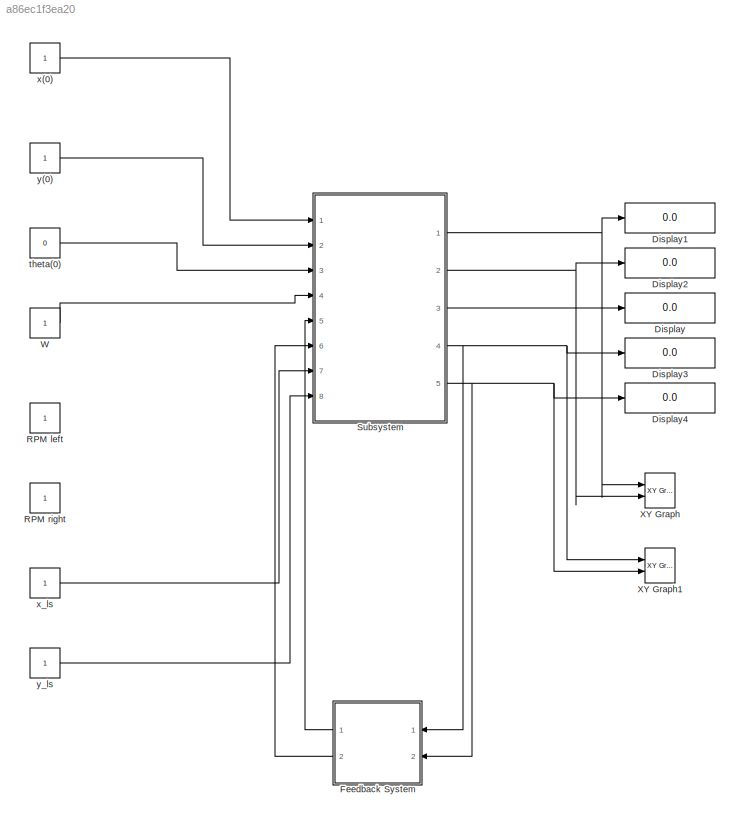
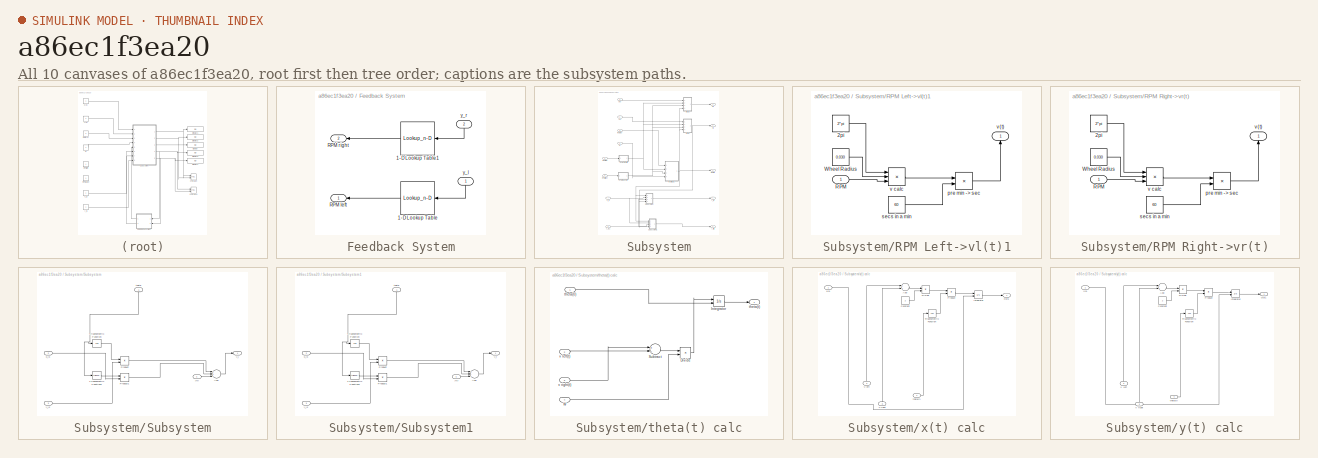
[diagram: thumbnail index - all 10 canvases of the model, root first then tree order]
MODEL slx_a86ec1f3ea20
KIND model
BLOCK [Display] Display
  Decimation = 1
  Ports = [1]
BLOCK [Display] Display1
  Decimation = 1
  Ports = [1]
BLOCK [Display] Display2
  Decimation = 1
  Ports = [1]
BLOCK [Display] Display3
  Decimation = 1
  Ports = [1]
BLOCK [Display] Display4
  Decimation = 1
  Ports = [1]
BLOCK [SubSystem] Feedback System
  FunctionWithSeparateData = off
  MaskHideContents = off
  MinAlgLoopOccurrences = off
  Opaque = off
  Ports = [2, 2]
  PropExecContextOutsideSubsystem = off
  RTWSystemCode = Auto
  RequestExecContextInheritance = off
BLOCK [Lookup_n-D] Feedback System/1-D Lookup Table
  BreakpointsForDimension1 = [-5:5]
  InternalRulePriority = Speed
  NumberOfTableDimensions = 1
  Ports = [1, 1]
  RndMeth = Simplest
  Table = tanh([-5:5])
BLOCK [Lookup_n-D] Feedback System/1-D Lookup Table1
  BreakpointsForDimension1 = [-5:5]
  InternalRulePriority = Speed
  NumberOfTableDimensions = 1
  Ports = [1, 1]
  RndMeth = Simplest
  Table = tanh([-5:5])
BLOCK [Outport] Feedback System/RPM left
  IconDisplay = Port number
BLOCK [Outport] Feedback System/RPM right
  IconDisplay = Port number
  Port = 2
BLOCK [Inport] Feedback System/y_l
  IconDisplay = Port number
BLOCK [Inport] Feedback System/y_r
  IconDisplay = Port number
  Port = 2
BLOCK [Constant] RPM left
BLOCK [Constant] RPM right
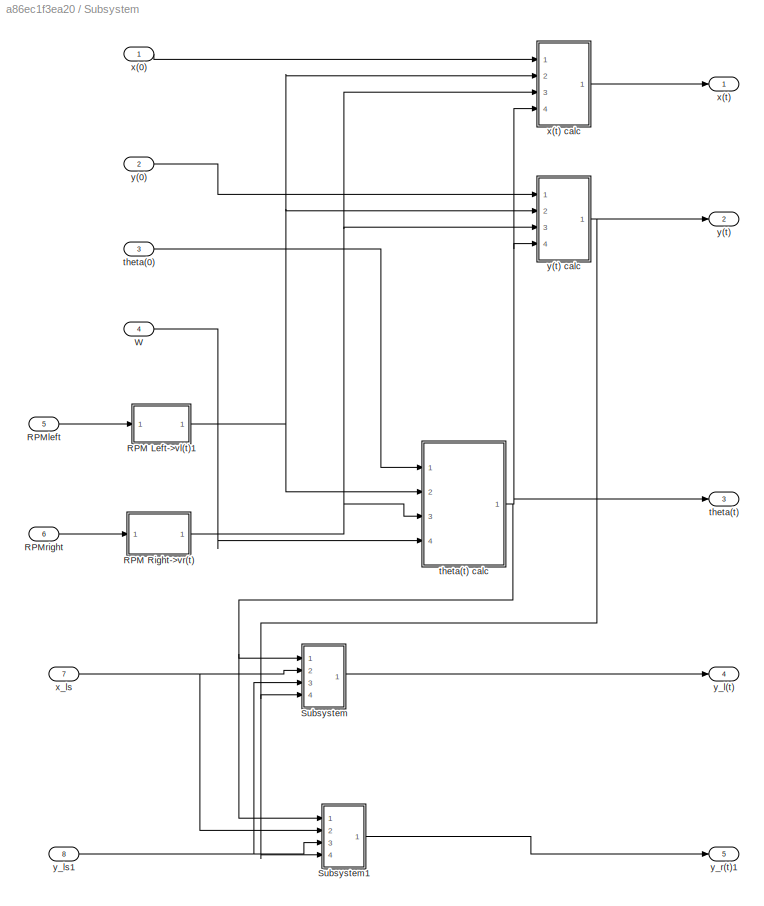
BLOCK [SubSystem] Subsystem
  FunctionWithSeparateData = off
  MaskHideContents = off
  MinAlgLoopOccurrences = off
  Opaque = off
  Ports = [8, 5]
  PropExecContextOutsideSubsystem = off
  RTWSystemCode = Auto
  RequestExecContextInheritance = off
BLOCK [SubSystem] Subsystem/RPM Left->vl(t)1
  FunctionWithSeparateData = off
  MaskHideContents = off
  MinAlgLoopOccurrences = off
  Opaque = off
  Ports = [1, 1]
  PropExecContextOutsideSubsystem = off
  RTWSystemCode = Auto
  RequestExecContextInheritance = off
BLOCK [Constant] Subsystem/RPM Left->vl(t)1/2pi
  Value = 2*pi
BLOCK [Inport] Subsystem/RPM Left->vl(t)1/RPM
  IconDisplay = Port number
BLOCK [Constant] Subsystem/RPM Left->vl(t)1/Wheel Radius
  Value = 0.030
BLOCK [Product] Subsystem/RPM Left->vl(t)1/pre min -> sec
  InputSameDT = off
  Inputs = */
  OutDataTypeStr = Inherit: Inherit via internal rule
  Ports = [2, 1]
  RndMeth = Floor
  SaturateOnIntegerOverflow = off
BLOCK [Constant] Subsystem/RPM Left->vl(t)1/secs in a min
  Value = 60
BLOCK [Product] Subsystem/RPM Left->vl(t)1/v calc
  InputSameDT = off
  Inputs = 3
  OutDataTypeStr = Inherit: Inherit via internal rule
  Ports = [3, 1]
  RndMeth = Floor
  SaturateOnIntegerOverflow = off
BLOCK [Outport] Subsystem/RPM Left->vl(t)1/v(t)
  IconDisplay = Port number
BLOCK [SubSystem] Subsystem/RPM Right->vr(t)
  FunctionWithSeparateData = off
  MaskHideContents = off
  MinAlgLoopOccurrences = off
  Opaque = off
  Ports = [1, 1]
  PropExecContextOutsideSubsystem = off
  RTWSystemCode = Auto
  RequestExecContextInheritance = off
BLOCK [Constant] Subsystem/RPM Right->vr(t)/2pi
  Value = 2*pi
BLOCK [Inport] Subsystem/RPM Right->vr(t)/RPM
  IconDisplay = Port number
BLOCK [Constant] Subsystem/RPM Right->vr(t)/Wheel Radius
  Value = 0.030
BLOCK [Product] Subsystem/RPM Right->vr(t)/pre min -> sec
  InputSameDT = off
  Inputs = */
  OutDataTypeStr = Inherit: Inherit via internal rule
  Ports = [2, 1]
  RndMeth = Floor
  SaturateOnIntegerOverflow = off
BLOCK [Constant] Subsystem/RPM Right->vr(t)/secs in a min
  Value = 60
BLOCK [Product] Subsystem/RPM Right->vr(t)/v calc
  InputSameDT = off
  Inputs = 3
  OutDataTypeStr = Inherit: Inherit via internal rule
  Ports = [3, 1]
  RndMeth = Floor
  SaturateOnIntegerOverflow = off
BLOCK [Outport] Subsystem/RPM Right->vr(t)/v(t)
  IconDisplay = Port number
BLOCK [Inport] Subsystem/RPMleft
  IconDisplay = Port number
  Port = 5
BLOCK [Inport] Subsystem/RPMright
  IconDisplay = Port number
  Port = 6
BLOCK [SubSystem] Subsystem/Subsystem
  FunctionWithSeparateData = off
  MaskHideContents = off
  MinAlgLoopOccurrences = off
  Opaque = off
  Ports = [4, 1]
  PropExecContextOutsideSubsystem = off
  RTWSystemCode = Auto
  RequestExecContextInheritance = off
BLOCK [Sum] Subsystem/Subsystem/Add
  InputSameDT = off
  Inputs = +++
  OutDataTypeStr = Inherit: Inherit via internal rule
  Ports = [3, 1]
  SaturateOnIntegerOverflow = off
BLOCK [Product] Subsystem/Subsystem/Product
  InputSameDT = off
  OutDataTypeStr = Inherit: Inherit via internal rule
  Ports = [2, 1]
  RndMeth = Floor
  SaturateOnIntegerOverflow = off
BLOCK [Product] Subsystem/Subsystem/Product1
  InputSameDT = off
  OutDataTypeStr = Inherit: Inherit via internal rule
  Ports = [2, 1]
  RndMeth = Floor
  SaturateOnIntegerOverflow = off
BLOCK [Trigonometry] Subsystem/Subsystem/Trigonometric Function
  Operator = cos
  Ports = [1, 1]
BLOCK [Trigonometry] Subsystem/Subsystem/Trigonometric Function1
  Ports = [1, 1]
BLOCK [Inport] Subsystem/Subsystem/theta
  IconDisplay = Port number
BLOCK [Inport] Subsystem/Subsystem/x_ls
  IconDisplay = Port number
  Port = 2
BLOCK [Inport] Subsystem/Subsystem/y(t)
  IconDisplay = Port number
  Port = 4
BLOCK [Outport] Subsystem/Subsystem/y_l
  IconDisplay = Port number
BLOCK [Inport] Subsystem/Subsystem/y_ls
  IconDisplay = Port number
  Port = 3
BLOCK [SubSystem] Subsystem/Subsystem1
  FunctionWithSeparateData = off
  MaskHideContents = off
  MinAlgLoopOccurrences = off
  Opaque = off
  Ports = [4, 1]
  PropExecContextOutsideSubsystem = off
  RTWSystemCode = Auto
  RequestExecContextInheritance = off
BLOCK [Sum] Subsystem/Subsystem1/Add
  InputSameDT = off
  Inputs = +-+
  OutDataTypeStr = Inherit: Inherit via internal rule
  Ports = [3, 1]
  SaturateOnIntegerOverflow = off
BLOCK [Product] Subsystem/Subsystem1/Product
  InputSameDT = off
  OutDataTypeStr = Inherit: Inherit via internal rule
  Ports = [2, 1]
  RndMeth = Floor
  SaturateOnIntegerOverflow = off
BLOCK [Product] Subsystem/Subsystem1/Product1
  InputSameDT = off
  OutDataTypeStr = Inherit: Inherit via internal rule
  Ports = [2, 1]
  RndMeth = Floor
  SaturateOnIntegerOverflow = off
BLOCK [Trigonometry] Subsystem/Subsystem1/Trigonometric Function
  Operator = cos
  Ports = [1, 1]
BLOCK [Trigonometry] Subsystem/Subsystem1/Trigonometric Function1
  Ports = [1, 1]
BLOCK [Inport] Subsystem/Subsystem1/theta
  IconDisplay = Port number
BLOCK [Inport] Subsystem/Subsystem1/x_ls
  IconDisplay = Port number
  Port = 2
BLOCK [Inport] Subsystem/Subsystem1/y(t)
  IconDisplay = Port number
  Port = 4
BLOCK [Inport] Subsystem/Subsystem1/y_ls
  IconDisplay = Port number
  Port = 3
BLOCK [Outport] Subsystem/Subsystem1/y_r
  IconDisplay = Port number
BLOCK [Inport] Subsystem/W
  IconDisplay = Port number
  Port = 4
BLOCK [Inport] Subsystem/theta(0)
  IconDisplay = Port number
  Port = 3
BLOCK [Outport] Subsystem/theta(t)
  IconDisplay = Port number
  Port = 3
BLOCK [SubSystem] Subsystem/theta(t) calc
  FunctionWithSeparateData = off
  MaskHideContents = off
  MinAlgLoopOccurrences = off
  Opaque = off
  Ports = [4, 1]
  PropExecContextOutsideSubsystem = off
  RTWSystemCode = Auto
  RequestExecContextInheritance = off
BLOCK [Product] Subsystem/theta(t) calc/Divide
  InputSameDT = off
  Inputs = */
  OutDataTypeStr = Inherit: Inherit via internal rule
  Ports = [2, 1]
  RndMeth = Floor
  SaturateOnIntegerOverflow = off
BLOCK [Integrator] Subsystem/theta(t) calc/Integrator
  InitialConditionSource = external
  Ports = [2, 1]
BLOCK [Sum] Subsystem/theta(t) calc/Subtract
  InputSameDT = off
  Inputs = +-
  OutDataTypeStr = Inherit: Inherit via internal rule
  Ports = [2, 1]
  SaturateOnIntegerOverflow = off
BLOCK [Inport] Subsystem/theta(t) calc/W
  IconDisplay = Port number
  Port = 4
BLOCK [Inport] Subsystem/theta(t) calc/theta(0)
  IconDisplay = Port number
BLOCK [Outport] Subsystem/theta(t) calc/theta(t)
  IconDisplay = Port number
BLOCK [Inport] Subsystem/theta(t) calc/v left(t)
  IconDisplay = Port number
  Port = 2
BLOCK [Inport] Subsystem/theta(t) calc/v right(t)
  IconDisplay = Port number
  Port = 3
BLOCK [Inport] Subsystem/x(0)
  IconDisplay = Port number
BLOCK [Outport] Subsystem/x(t)
  IconDisplay = Port number
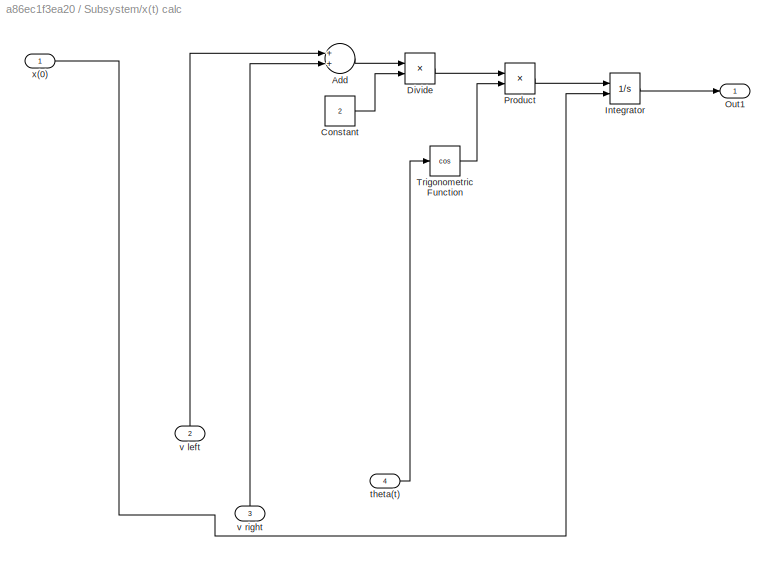
BLOCK [SubSystem] Subsystem/x(t) calc
  FunctionWithSeparateData = off
  MaskHideContents = off
  MinAlgLoopOccurrences = off
  Opaque = off
  Ports = [4, 1]
  PropExecContextOutsideSubsystem = off
  RTWSystemCode = Auto
  RequestExecContextInheritance = off
BLOCK [Sum] Subsystem/x(t) calc/Add
  InputSameDT = off
  OutDataTypeStr = Inherit: Inherit via internal rule
  Ports = [2, 1]
  SaturateOnIntegerOverflow = off
BLOCK [Constant] Subsystem/x(t) calc/Constant
  Value = 2
BLOCK [Product] Subsystem/x(t) calc/Divide
  InputSameDT = off
  Inputs = */
  OutDataTypeStr = Inherit: Inherit via internal rule
  Ports = [2, 1]
  RndMeth = Floor
  SaturateOnIntegerOverflow = off
BLOCK [Integrator] Subsystem/x(t) calc/Integrator
  InitialConditionSource = external
  Ports = [2, 1]
BLOCK [Outport] Subsystem/x(t) calc/Out1
  IconDisplay = Port number
BLOCK [Product] Subsystem/x(t) calc/Product
  InputSameDT = off
  OutDataTypeStr = Inherit: Inherit via internal rule
  Ports = [2, 1]
  RndMeth = Floor
  SaturateOnIntegerOverflow = off
BLOCK [Trigonometry] Subsystem/x(t) calc/Trigonometric Function
  Operator = cos
  Ports = [1, 1]
BLOCK [Inport] Subsystem/x(t) calc/theta(t)
  IconDisplay = Port number
  Port = 4
BLOCK [Inport] Subsystem/x(t) calc/v left
  IconDisplay = Port number
  Port = 2
BLOCK [Inport] Subsystem/x(t) calc/v right
  IconDisplay = Port number
  Port = 3
BLOCK [Inport] Subsystem/x(t) calc/x(0)
  IconDisplay = Port number
BLOCK [Inport] Subsystem/x_ls
  IconDisplay = Port number
  Port = 7
BLOCK [Inport] Subsystem/y(0)
  IconDisplay = Port number
  Port = 2
BLOCK [Outport] Subsystem/y(t)
  IconDisplay = Port number
  Port = 2
BLOCK [SubSystem] Subsystem/y(t) calc
  FunctionWithSeparateData = off
  MaskHideContents = off
  MinAlgLoopOccurrences = off
  Opaque = off
  Ports = [4, 1]
  PropExecContextOutsideSubsystem = off
  RTWSystemCode = Auto
  RequestExecContextInheritance = off
BLOCK [Sum] Subsystem/y(t) calc/Add
  InputSameDT = off
  OutDataTypeStr = Inherit: Inherit via internal rule
  Ports = [2, 1]
  SaturateOnIntegerOverflow = off
BLOCK [Constant] Subsystem/y(t) calc/Constant
  Value = 2
BLOCK [Product] Subsystem/y(t) calc/Divide
  InputSameDT = off
  Inputs = */
  OutDataTypeStr = Inherit: Inherit via internal rule
  Ports = [2, 1]
  RndMeth = Floor
  SaturateOnIntegerOverflow = off
BLOCK [Integrator] Subsystem/y(t) calc/Integrator
  InitialConditionSource = external
  Ports = [2, 1]
BLOCK [Outport] Subsystem/y(t) calc/Out1
  IconDisplay = Port number
BLOCK [Product] Subsystem/y(t) calc/Product
  InputSameDT = off
  OutDataTypeStr = Inherit: Inherit via internal rule
  Ports = [2, 1]
  RndMeth = Floor
  SaturateOnIntegerOverflow = off
BLOCK [Trigonometry] Subsystem/y(t) calc/Trigonometric Function
  Operator = cos
  Ports = [1, 1]
BLOCK [Inport] Subsystem/y(t) calc/V left
  IconDisplay = Port number
  Port = 2
BLOCK [Inport] Subsystem/y(t) calc/V right
  IconDisplay = Port number
  Port = 3
BLOCK [Inport] Subsystem/y(t) calc/theta(t)
  IconDisplay = Port number
  Port = 4
BLOCK [Inport] Subsystem/y(t) calc/y(0)
  IconDisplay = Port number
BLOCK [Outport] Subsystem/y_l(t)
  IconDisplay = Port number
  Port = 4
BLOCK [Inport] Subsystem/y_ls1
  IconDisplay = Port number
  Port = 8
BLOCK [Outport] Subsystem/y_r(t)1
  IconDisplay = Port number
  Port = 5
BLOCK [Constant] W
BLOCK [Reference] XY Graph  REF=simulink/Sinks/XY Graph
  Ports = [2]
  SourceBlock = simulink/Sinks/XY Graph
  SourceType = XY scope.
  st = 1
  xmax = 20
  xmin = -20
  ymax = 20
  ymin = -20
BLOCK [Reference] XY Graph1  REF=simulink/Sinks/XY Graph
  Ports = [2]
  SourceBlock = simulink/Sinks/XY Graph
  SourceType = XY scope.
  st = -1
  xmax = 100
  xmin = -100
  ymax = 100
  ymin = -100
BLOCK [Constant] theta(0)
  Value = 0
BLOCK [Constant] x(0)
BLOCK [Constant] x_ls
BLOCK [Constant] y(0)
BLOCK [Constant] y_ls
LINE Feedback System/1-D Lookup Table1:1 -> Feedback System/RPM right:1
LINE Feedback System/1-D Lookup Table:1 -> Feedback System/RPM left:1
LINE Feedback System/y_l:1 -> Feedback System/1-D Lookup Table:1
LINE Feedback System/y_r:1 -> Feedback System/1-D Lookup Table1:1
LINE Feedback System:1 -> Subsystem:5
LINE Feedback System:2 -> Subsystem:6
LINE Subsystem/RPM Left->vl(t)1/2pi:1 -> Subsystem/RPM Left->vl(t)1/v calc:1
LINE Subsystem/RPM Left->vl(t)1/RPM:1 -> Subsystem/RPM Left->vl(t)1/v calc:3
LINE Subsystem/RPM Left->vl(t)1/Wheel Radius:1 -> Subsystem/RPM Left->vl(t)1/v calc:2
LINE Subsystem/RPM Left->vl(t)1/pre min -> sec:1 -> Subsystem/RPM Left->vl(t)1/v(t):1
LINE Subsystem/RPM Left->vl(t)1/secs in a min:1 -> Subsystem/RPM Left->vl(t)1/pre min -> sec:2
LINE Subsystem/RPM Left->vl(t)1/v calc:1 -> Subsystem/RPM Left->vl(t)1/pre min -> sec:1
NET Subsystem/RPM Left->vl(t)1:1 -> Subsystem/theta(t) calc:2, Subsystem/x(t) calc:2, Subsystem/y(t) calc:2
LINE Subsystem/RPM Right->vr(t)/2pi:1 -> Subsystem/RPM Right->vr(t)/v calc:1
LINE Subsystem/RPM Right->vr(t)/RPM:1 -> Subsystem/RPM Right->vr(t)/v calc:3
LINE Subsystem/RPM Right->vr(t)/Wheel Radius:1 -> Subsystem/RPM Right->vr(t)/v calc:2
LINE Subsystem/RPM Right->vr(t)/pre min -> sec:1 -> Subsystem/RPM Right->vr(t)/v(t):1
LINE Subsystem/RPM Right->vr(t)/secs in a min:1 -> Subsystem/RPM Right->vr(t)/pre min -> sec:2
LINE Subsystem/RPM Right->vr(t)/v calc:1 -> Subsystem/RPM Right->vr(t)/pre min -> sec:1
NET Subsystem/RPM Right->vr(t):1 -> Subsystem/theta(t) calc:3, Subsystem/x(t) calc:3, Subsystem/y(t) calc:3
LINE Subsystem/RPMleft:1 -> Subsystem/RPM Left->vl(t)1:1
LINE Subsystem/RPMright:1 -> Subsystem/RPM Right->vr(t):1
LINE Subsystem/Subsystem/Add:1 -> Subsystem/Subsystem/y_l:1
LINE Subsystem/Subsystem/Product1:1 -> Subsystem/Subsystem/Add:2
LINE Subsystem/Subsystem/Product:1 -> Subsystem/Subsystem/Add:1
LINE Subsystem/Subsystem/Trigonometric Function1:1 -> Subsystem/Subsystem/Product1:1
LINE Subsystem/Subsystem/Trigonometric Function:1 -> Subsystem/Subsystem/Product:1
NET Subsystem/Subsystem/theta:1 -> Subsystem/Subsystem/Trigonometric Function1:1, Subsystem/Subsystem/Trigonometric Function:1
LINE Subsystem/Subsystem/x_ls:1 -> Subsystem/Subsystem/Product1:2
LINE Subsystem/Subsystem/y(t):1 -> Subsystem/Subsystem/Add:3
LINE Subsystem/Subsystem/y_ls:1 -> Subsystem/Subsystem/Product:2
LINE Subsystem/Subsystem1/Add:1 -> Subsystem/Subsystem1/y_r:1
LINE Subsystem/Subsystem1/Product1:1 -> Subsystem/Subsystem1/Add:2
LINE Subsystem/Subsystem1/Product:1 -> Subsystem/Subsystem1/Add:1
LINE Subsystem/Subsystem1/Trigonometric Function1:1 -> Subsystem/Subsystem1/Product1:1
LINE Subsystem/Subsystem1/Trigonometric Function:1 -> Subsystem/Subsystem1/Product:1
NET Subsystem/Subsystem1/theta:1 -> Subsystem/Subsystem1/Trigonometric Function1:1, Subsystem/Subsystem1/Trigonometric Function:1
LINE Subsystem/Subsystem1/x_ls:1 -> Subsystem/Subsystem1/Product1:2
LINE Subsystem/Subsystem1/y(t):1 -> Subsystem/Subsystem1/Add:3
LINE Subsystem/Subsystem1/y_ls:1 -> Subsystem/Subsystem1/Product:2
LINE Subsystem/Subsystem1:1 -> Subsystem/y_r(t)1:1
LINE Subsystem/Subsystem:1 -> Subsystem/y_l(t):1
LINE Subsystem/W:1 -> Subsystem/theta(t) calc:4
LINE Subsystem/theta(0):1 -> Subsystem/theta(t) calc:1
LINE Subsystem/theta(t) calc/Divide:1 -> Subsystem/theta(t) calc/Integrator:1
LINE Subsystem/theta(t) calc/Integrator:1 -> Subsystem/theta(t) calc/theta(t):1
LINE Subsystem/theta(t) calc/Subtract:1 -> Subsystem/theta(t) calc/Divide:1
LINE Subsystem/theta(t) calc/W:1 -> Subsystem/theta(t) calc/Divide:2
LINE Subsystem/theta(t) calc/theta(0):1 -> Subsystem/theta(t) calc/Integrator:2
LINE Subsystem/theta(t) calc/v left(t):1 -> Subsystem/theta(t) calc/Subtract:2
LINE Subsystem/theta(t) calc/v right(t):1 -> Subsystem/theta(t) calc/Subtract:1
NET Subsystem/theta(t) calc:1 -> Subsystem/Subsystem1:1, Subsystem/Subsystem:1, Subsystem/theta(t):1, Subsystem/x(t) calc:4, Subsystem/y(t) calc:4
LINE Subsystem/x(0):1 -> Subsystem/x(t) calc:1
LINE Subsystem/x(t) calc/Add:1 -> Subsystem/x(t) calc/Divide:1
LINE Subsystem/x(t) calc/Constant:1 -> Subsystem/x(t) calc/Divide:2
LINE Subsystem/x(t) calc/Divide:1 -> Subsystem/x(t) calc/Product:1
LINE Subsystem/x(t) calc/Integrator:1 -> Subsystem/x(t) calc/Out1:1
LINE Subsystem/x(t) calc/Product:1 -> Subsystem/x(t) calc/Integrator:1
LINE Subsystem/x(t) calc/Trigonometric Function:1 -> Subsystem/x(t) calc/Product:2
LINE Subsystem/x(t) calc/theta(t):1 -> Subsystem/x(t) calc/Trigonometric Function:1
LINE Subsystem/x(t) calc/v left:1 -> Subsystem/x(t) calc/Add:1
LINE Subsystem/x(t) calc/v right:1 -> Subsystem/x(t) calc/Add:2
LINE Subsystem/x(t) calc/x(0):1 -> Subsystem/x(t) calc/Integrator:2
LINE Subsystem/x(t) calc:1 -> Subsystem/x(t):1
NET Subsystem/x_ls:1 -> Subsystem/Subsystem1:2, Subsystem/Subsystem:2
LINE Subsystem/y(0):1 -> Subsystem/y(t) calc:1
LINE Subsystem/y(t) calc/Add:1 -> Subsystem/y(t) calc/Divide:1
LINE Subsystem/y(t) calc/Constant:1 -> Subsystem/y(t) calc/Divide:2
LINE Subsystem/y(t) calc/Divide:1 -> Subsystem/y(t) calc/Product:1
LINE Subsystem/y(t) calc/Integrator:1 -> Subsystem/y(t) calc/Out1:1
LINE Subsystem/y(t) calc/Product:1 -> Subsystem/y(t) calc/Integrator:1
LINE Subsystem/y(t) calc/Trigonometric Function:1 -> Subsystem/y(t) calc/Product:2
LINE Subsystem/y(t) calc/V left:1 -> Subsystem/y(t) calc/Add:1
LINE Subsystem/y(t) calc/V right:1 -> Subsystem/y(t) calc/Add:2
LINE Subsystem/y(t) calc/theta(t):1 -> Subsystem/y(t) calc/Trigonometric Function:1
LINE Subsystem/y(t) calc/y(0):1 -> Subsystem/y(t) calc/Integrator:2
NET Subsystem/y(t) calc:1 -> Subsystem/Subsystem1:4, Subsystem/Subsystem:4, Subsystem/y(t):1
NET Subsystem/y_ls1:1 -> Subsystem/Subsystem1:3, Subsystem/Subsystem:3
NET Subsystem:1 -> Display1:1, XY Graph:1
NET Subsystem:2 -> Display2:1, XY Graph:2
LINE Subsystem:3 -> Display:1
NET Subsystem:4 -> Display3:1, Feedback System:1, XY Graph1:1
NET Subsystem:5 -> Display4:1, Feedback System:2, XY Graph1:2
LINE W:1 -> Subsystem:4
LINE theta(0):1 -> Subsystem:3
LINE x(0):1 -> Subsystem:1
LINE x_ls:1 -> Subsystem:7
LINE y(0):1 -> Subsystem:2
LINE y_ls:1 -> Subsystem:8
note: NET lines group one-source signal fan-out (src -> all destinations, sorted); 1:1 wires keep LINE
